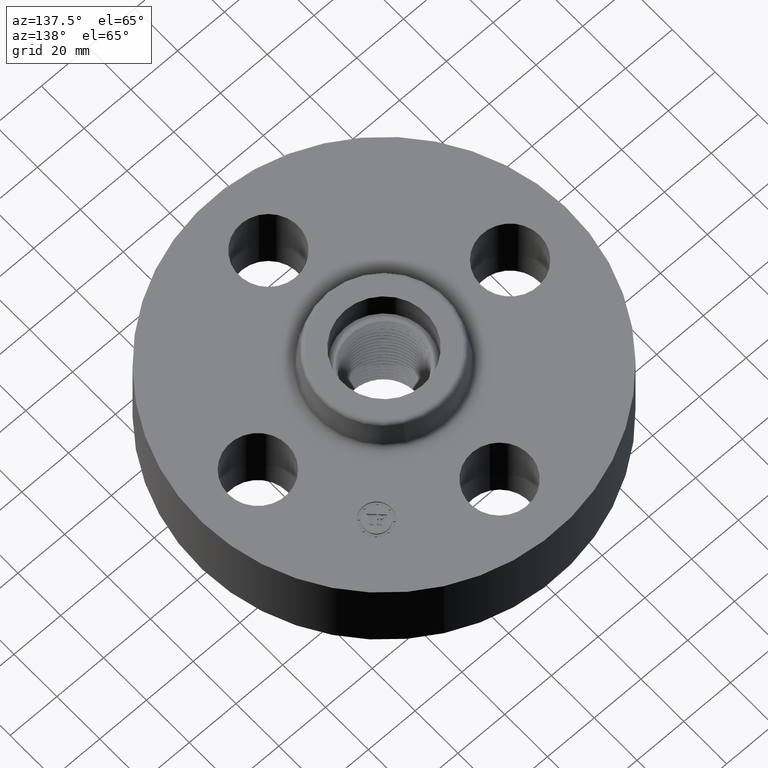
[diagram: clean part render]
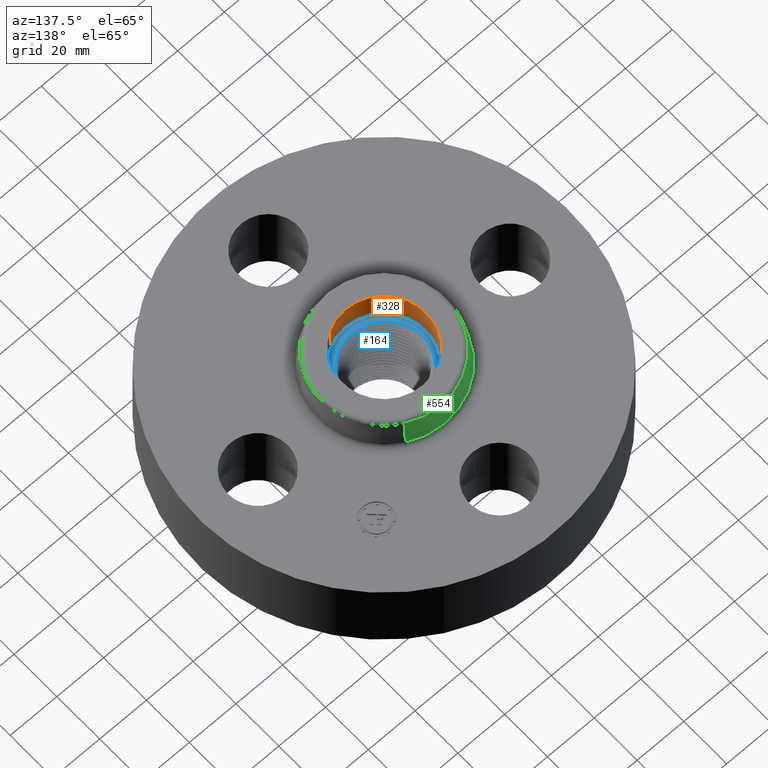
[diagram: same view with three faces highlighted in distinct colors, each labeled with its STEP entity id]
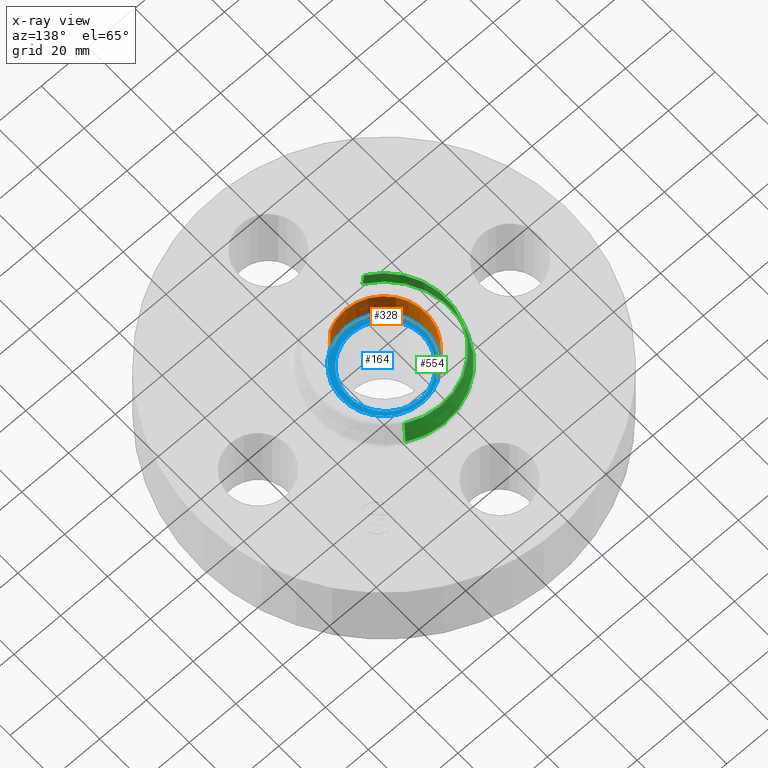
[diagram: x-ray of the same camera — body ghosted, the three highlighted faces saturated]
A machine part, auxiliary view with three faces highlighted in distinct colors.
The next image is the same camera in x-ray (body ghosted, the three faces saturated) — at least one of them is partly hidden behind the body in this view.
Their STEP definitions:

[orange] entity #328 — the highlighted cylindrical surface (partial cylindrical patch) has radius 17.907 mm, axis along (0, 0, 1).
#42=AXIS2_PLACEMENT_3D('Circle Axis2P3D',#40,#41,$) ;
#301=AXIS2_PLACEMENT_3D('Cylinder Axis2P3D',#298,#299,#300) ;
#305=AXIS2_PLACEMENT_3D('Circle Axis2P3D',#303,#304,$) ;
#40=CARTESIAN_POINT('Axis2P3D Location',(0.,0.,1.38000000001)) ;
#44=CARTESIAN_POINT('Vertex',(-0.337995004717,0.618695706135,1.38000000001)) ;
#46=CARTESIAN_POINT('Vertex',(0.337995004717,-0.618695706135,1.38000000001)) ;
#298=CARTESIAN_POINT('Axis2P3D Location',(0.,0.,1.38000000001)) ;
#303=CARTESIAN_POINT('Axis2P3D Location',(0.,0.,1.88000000001)) ;
#307=CARTESIAN_POINT('Vertex',(0.337995004717,-0.618695706135,1.88000000001)) ;
#309=CARTESIAN_POINT('Vertex',(-0.337995004717,0.618695706135,1.88000000001)) ;
#312=CARTESIAN_POINT('Line Origine',(0.337995004717,-0.618695706135,1.63000000001)) ;
#317=CARTESIAN_POINT('Line Origine',(-0.337995004717,0.618695706135,1.63000000001)) ;
#41=DIRECTION('Axis2P3D Direction',(0.,0.,-0.0393700787402)) ;
#299=DIRECTION('Axis2P3D Direction',(0.,0.,0.0393700787402)) ;
#300=DIRECTION('Axis2P3D XDirection',(0.0188750212049,-0.0345504945626,0.)) ;
#304=DIRECTION('Axis2P3D Direction',(0.,0.,0.0393700787402)) ;
#313=DIRECTION('Vector Direction',(0.,0.,0.0393700787402)) ;
#318=DIRECTION('Vector Direction',(0.,0.,0.0393700787402)) ;
#314=VECTOR('Line Direction',#313,0.0393700787402) ;
#319=VECTOR('Line Direction',#318,0.0393700787402) ;
#323=ORIENTED_EDGE('',*,*,#311,.F.) ;
#324=ORIENTED_EDGE('',*,*,#316,.F.) ;
#325=ORIENTED_EDGE('',*,*,#48,.F.) ;
#326=ORIENTED_EDGE('',*,*,#321,.T.) ;
#328=ADVANCED_FACE('PartBody',(#327),#302,.F.) ;
#43=CIRCLE('generated circle',#42,0.705000000003) ;
#306=CIRCLE('generated circle',#305,0.705000000003) ;
#302=CYLINDRICAL_SURFACE('generated cylinder',#301,0.705000000003) ;
#48=EDGE_CURVE('',#45,#47,#43,.F.) ;
#311=EDGE_CURVE('',#308,#310,#306,.F.) ;
#316=EDGE_CURVE('',#47,#308,#315,.T.) ;
#321=EDGE_CURVE('',#45,#310,#320,.T.) ;
#322=EDGE_LOOP('',(#323,#324,#325,#326)) ;
#327=FACE_OUTER_BOUND('',#322,.T.) ;
#315=LINE('Line',#312,#314) ;
#320=LINE('Line',#317,#319) ;
#45=VERTEX_POINT('',#44) ;
#47=VERTEX_POINT('',#46) ;
#308=VERTEX_POINT('',#307) ;
#310=VERTEX_POINT('',#309) ;

[blue] entity #164 — the highlighted planar face has unit normal (0, 0, -1).
#38=AXIS2_PLACEMENT_3D('Plane Axis2P3D',#35,#36,#37) ;
#42=AXIS2_PLACEMENT_3D('Circle Axis2P3D',#40,#41,$) ;
#51=AXIS2_PLACEMENT_3D('Circle Axis2P3D',#49,#50,$) ;
#60=AXIS2_PLACEMENT_3D('Circle Axis2P3D',#58,#59,$) ;
#35=CARTESIAN_POINT('Axis2P3D Location',(-9.35384753031E-017,1.08399728389E-016,1.38000000001)) ;
#40=CARTESIAN_POINT('Axis2P3D Location',(0.,0.,1.38000000001)) ;
#44=CARTESIAN_POINT('Vertex',(-0.337995004717,0.618695706135,1.38000000001)) ;
#46=CARTESIAN_POINT('Vertex',(0.337995004717,-0.618695706135,1.38000000001)) ;
#49=CARTESIAN_POINT('Axis2P3D Location',(0.,0.,1.38000000001)) ;
#58=CARTESIAN_POINT('Axis2P3D Location',(1.1626745061E-016,-1.18890024684E-016,1.38000000001)) ;
#62=CARTESIAN_POINT('Vertex',(-0.00949929442543,-0.585706503744,1.37999941783)) ;
#64=CARTESIAN_POINT('Vertex',(-0.0793239107826,-0.580387888288,1.38000047135)) ;
#68=CARTESIAN_POINT('Control Point',(-0.309049877259,0.565716223418,1.38000000001)) ;
#69=CARTESIAN_POINT('Control Point',(-0.362777895111,0.533771564816,1.38000000001)) ;
#70=CARTESIAN_POINT('Control Point',(-0.412515231994,0.495379413593,1.38000000001)) ;
#71=CARTESIAN_POINT('Control Point',(-0.457206731892,0.451190931693,1.38000000001)) ;
#72=CARTESIAN_POINT('Control Point',(-0.534746567426,0.353031704337,1.38000000001)) ;
#73=CARTESIAN_POINT('Control Point',(-0.586093063436,0.239601820345,1.38000000001)) ;
#74=CARTESIAN_POINT('Control Point',(-0.604602581289,0.180115720679,1.38000000001)) ;
#75=CARTESIAN_POINT('Control Point',(-0.622895640423,0.0784362875033,1.38000000001)) ;
#76=CARTESIAN_POINT('Control Point',(-0.620137180821,-0.0240329128314,1.38000000001)) ;
#77=CARTESIAN_POINT('Control Point',(-0.61565166873,-0.0647733012074,1.38000000001)) ;
#78=CARTESIAN_POINT('Control Point',(-0.596098257652,-0.165083797034,1.38000000001)) ;
#79=CARTESIAN_POINT('Control Point',(-0.556380002652,-0.259276887118,1.38000000001)) ;
#80=CARTESIAN_POINT('Control Point',(-0.52565751677,-0.312373724251,1.38000000001)) ;
#81=CARTESIAN_POINT('Control Point',(-0.451775582756,-0.409537065272,1.38000000001)) ;
#82=CARTESIAN_POINT('Control Point',(-0.356680839336,-0.485039805956,1.38000000001)) ;
#83=CARTESIAN_POINT('Control Point',(-0.304708223826,-0.516507726068,1.38000000001)) ;
#84=CARTESIAN_POINT('Control Point',(-0.228145357689,-0.550475885286,1.38000000001)) ;
#85=CARTESIAN_POINT('Control Point',(-0.147669979726,-0.570416939975,1.38000000001)) ;
#86=CARTESIAN_POINT('Control Point',(-0.12502256953,-0.574863116995,1.38000000001)) ;
#87=CARTESIAN_POINT('Control Point',(-0.102215768127,-0.578188372291,1.38000000001)) ;
#88=CARTESIAN_POINT('Control Point',(-0.0793237960029,-0.580387172535,1.38000000001)) ;
#89=CARTESIAN_POINT('Vertex',(-0.309049877259,0.565716223418,1.38000000001)) ;
#93=CARTESIAN_POINT('Control Point',(-0.0516217877433,0.652478044382,1.38000000001)) ;
#94=CARTESIAN_POINT('Control Point',(-0.106194450354,0.646184056569,1.38000000001)) ;
#95=CARTESIAN_POINT('Control Point',(-0.160009001938,0.634171510794,1.38000000001)) ;
#96=CARTESIAN_POINT('Control Point',(-0.212272922768,0.616543946216,1.38000000001)) ;
#97=CARTESIAN_POINT('Control Point',(-0.262179892326,0.593583353333,1.38000000001)) ;
#98=CARTESIAN_POINT('Control Point',(-0.309049877259,0.565716223418,1.38000000001)) ;
#99=CARTESIAN_POINT('Vertex',(-0.0516217877433,0.652478044382,1.38000000001)) ;
#103=CARTESIAN_POINT('Control Point',(-0.0516217877433,0.652478044382,1.38000000001)) ;
#104=CARTESIAN_POINT('Control Point',(-0.0413004545836,0.65295860538,1.38000000001)) ;
#105=CARTESIAN_POINT('Control Point',(-0.0309727511457,0.653235218394,1.38000000001)) ;
#106=CARTESIAN_POINT('Control Point',(-0.0206369709344,0.653307693991,1.38000000001)) ;
#107=CARTESIAN_POINT('Control Point',(-0.0103126300768,0.653175970798,1.38000000001)) ;
#108=CARTESIAN_POINT('Control Point',(2.00063868126E-006,0.652840425221,1.38000000001)) ;
#109=CARTESIAN_POINT('Vertex',(2.00063868128E-006,0.652840425221,1.38000000001)) ;
#113=CARTESIAN_POINT('Control Point',(2.00063868131E-006,0.652840425221,1.38000000001)) ;
#114=CARTESIAN_POINT('Control Point',(0.0628711812175,0.650795225366,1.38000000001)) ;
#115=CARTESIAN_POINT('Control Point',(0.12537962373,0.641177787819,1.38000000001)) ;
#116=CARTESIAN_POINT('Control Point',(0.18629782067,0.624043039541,1.38000000001)) ;
#117=CARTESIAN_POINT('Control Point',(0.302533911355,0.575468733699,1.38000000001)) ;
#118=CARTESIAN_POINT('Control Point',(0.403364498492,0.500774173251,1.38000000001)) ;
#119=CARTESIAN_POINT('Control Point',(0.448878897446,0.457513178717,1.38000000001)) ;
#120=CARTESIAN_POINT('Control Point',(0.515027565788,0.377053419271,1.38000000001)) ;
#121=CARTESIAN_POINT('Control Point',(0.563227772536,0.285550785952,1.38000000001)) ;
#122=CARTESIAN_POINT('Control Point',(0.57943839606,0.247507272332,1.38000000001)) ;
#123=CARTESIAN_POINT('Control Point',(0.611941364737,0.149647859459,1.38000000001)) ;
#124=CARTESIAN_POINT('Control Point',(0.623891988565,0.0471352797657,1.38000000001)) ;
#125=CARTESIAN_POINT('Control Point',(0.623382625953,-0.0148105244384,1.38000000001)) ;
#126=CARTESIAN_POINT('Control Point',(0.607085029788,-0.1370160957,1.38000000001)) ;
#127=CARTESIAN_POINT('Control Point',(0.561591649389,-0.251022350932,1.38000000001)) ;
#128=CARTESIAN_POINT('Control Point',(0.531877912767,-0.304783092398,1.38000000001)) ;
#129=CARTESIAN_POINT('Control Point',(0.470656058747,-0.388681392368,1.38000000001)) ;
#130=CARTESIAN_POINT('Control Point',(0.393727725386,-0.457316234956,1.38000000001)) ;
#131=CARTESIAN_POINT('Control Point',(0.359716602045,-0.482661367324,1.38000000001)) ;
#132=CARTESIAN_POINT('Control Point',(0.323705007385,-0.504851169306,1.38000000001)) ;
#133=CARTESIAN_POINT('Control Point',(0.286091728501,-0.523694317702,1.38000000001)) ;
#134=CARTESIAN_POINT('Vertex',(0.286091728501,-0.523694317702,1.38000000001)) ;
#138=CARTESIAN_POINT('Control Point',(0.286091728501,-0.523694317702,1.38000000001)) ;
#139=CARTESIAN_POINT('Control Point',(0.232940795276,-0.550321375013,1.38000000001)) ;
#140=CARTESIAN_POINT('Control Point',(0.176591573324,-0.570265745912,1.38000000001)) ;
#141=CARTESIAN_POINT('Control Point',(0.118132035886,-0.582998630517,1.38000000001)) ;
#142=CARTESIAN_POINT('Control Point',(0.0588608051139,-0.58825996807,1.38000000001)) ;
#143=CARTESIAN_POINT('Control Point',(-3.89247784777E-006,-0.586126893668,1.38000000001)) ;
#144=CARTESIAN_POINT('Vertex',(-3.89247784785E-006,-0.586126893668,1.38000000001)) ;
#148=CARTESIAN_POINT('Control Point',(-3.89247784774E-006,-0.586126893668,1.38000000001)) ;
#149=CARTESIAN_POINT('Control Point',(-0.00190389432327,-0.586058043485,1.38000000001)) ;
#150=CARTESIAN_POINT('Control Point',(-0.0038034726791,-0.585981489576,1.38000000001)) ;
#151=CARTESIAN_POINT('Control Point',(-0.00570263455717,-0.585897232092,1.38000000001)) ;
#152=CARTESIAN_POINT('Control Point',(-0.00760123904533,-0.585805278187,1.38000000001)) ;
#153=CARTESIAN_POINT('Control Point',(-0.0094992932573,-0.585705628864,1.38000000001)) ;
#36=DIRECTION('Axis2P3D Direction',(0.,0.,-0.0393700787402)) ;
#37=DIRECTION('Axis2P3D XDirection',(0.,0.0393700787402,0.)) ;
#41=DIRECTION('Axis2P3D Direction',(0.,0.,-0.0393700787402)) ;
#50=DIRECTION('Axis2P3D Direction',(0.,0.,-0.0393700787402)) ;
#59=DIRECTION('Axis2P3D Direction',(0.,0.,-0.0393700787402)) ;
#55=ORIENTED_EDGE('',*,*,#48,.T.) ;
#56=ORIENTED_EDGE('',*,*,#53,.T.) ;
#156=ORIENTED_EDGE('',*,*,#66,.T.) ;
#157=ORIENTED_EDGE('',*,*,#91,.F.) ;
#158=ORIENTED_EDGE('',*,*,#101,.F.) ;
#159=ORIENTED_EDGE('',*,*,#111,.T.) ;
#160=ORIENTED_EDGE('',*,*,#136,.T.) ;
#161=ORIENTED_EDGE('',*,*,#146,.T.) ;
#162=ORIENTED_EDGE('',*,*,#154,.T.) ;
#163=FACE_BOUND('',#155,.T.) ;
#164=ADVANCED_FACE('PartBody',(#57,#163),#39,.F.) ;
#67=B_SPLINE_CURVE_WITH_KNOTS('',5,(#68,#69,#70,#71,#72,#73,#74,#75,#76,#77,#78,#79,#80,#81,#82,#83,#84,#85,#86,#87,#88),.UNSPECIFIED.,.F.,.U.,(6,3,3,3,3,3,6),(0.,11.0233151277,22.051693298,29.4025229237,40.4294352813,51.4657569,55.7264235262),.UNSPECIFIED.) ;
#92=B_SPLINE_CURVE_WITH_KNOTS('',5,(#93,#94,#95,#96,#97,#98),.UNSPECIFIED.,.F.,.U.,(6,6),(0.,9.61626044167),.UNSPECIFIED.) ;
#102=B_SPLINE_CURVE_WITH_KNOTS('',5,(#103,#104,#105,#106,#107,#108),.UNSPECIFIED.,.F.,.U.,(6,6),(0.,1.80865135417),.UNSPECIFIED.) ;
#112=B_SPLINE_CURVE_WITH_KNOTS('',5,(#113,#114,#115,#116,#117,#118,#119,#120,#121,#122,#123,#124,#125,#126,#127,#128,#129,#130,#131,#132,#133),.UNSPECIFIED.,.F.,.U.,(6,3,3,3,3,3,6),(0.,11.0239941473,22.0484194483,29.3938536626,40.4078646075,51.4249810271,59.1269665537),.UNSPECIFIED.) ;
#137=B_SPLINE_CURVE_WITH_KNOTS('',5,(#138,#139,#140,#141,#142,#143),.UNSPECIFIED.,.F.,.U.,(6,6),(0.,10.883595674),.UNSPECIFIED.) ;
#147=B_SPLINE_CURVE_WITH_KNOTS('',5,(#148,#149,#150,#151,#152,#153),.UNSPECIFIED.,.F.,.U.,(6,6),(0.,0.351294624974),.UNSPECIFIED.) ;
#43=CIRCLE('generated circle',#42,0.705000000003) ;
#52=CIRCLE('generated circle',#51,0.705000000003) ;
#61=CIRCLE('generated circle',#60,0.585783549135) ;
#48=EDGE_CURVE('',#45,#47,#43,.F.) ;
#53=EDGE_CURVE('',#47,#45,#52,.F.) ;
#66=EDGE_CURVE('',#63,#65,#61,.T.) ;
#91=EDGE_CURVE('',#90,#65,#67,.T.) ;
#101=EDGE_CURVE('',#100,#90,#92,.T.) ;
#111=EDGE_CURVE('',#100,#110,#102,.T.) ;
#136=EDGE_CURVE('',#110,#135,#112,.T.) ;
#146=EDGE_CURVE('',#135,#145,#137,.T.) ;
#154=EDGE_CURVE('',#145,#63,#147,.T.) ;
#54=EDGE_LOOP('',(#55,#56)) ;
#155=EDGE_LOOP('',(#156,#157,#158,#159,#160,#161,#162)) ;
#57=FACE_OUTER_BOUND('',#54,.T.) ;
#39=PLANE('',#38) ;
#45=VERTEX_POINT('',#44) ;
#47=VERTEX_POINT('',#46) ;
#63=VERTEX_POINT('',#62) ;
#65=VERTEX_POINT('',#64) ;
#90=VERTEX_POINT('',#89) ;
#100=VERTEX_POINT('',#99) ;
#110=VERTEX_POINT('',#109) ;
#135=VERTEX_POINT('',#134) ;
#145=VERTEX_POINT('',#144) ;

[green] entity #554 — the highlighted conical surface has half-angle 10 deg.
#502=AXIS2_PLACEMENT_3D('Circle Axis2P3D',#500,#501,$) ;
#515=AXIS2_PLACEMENT_3D('Cone Axis2P3D',#512,#513,#514) ;
#545=AXIS2_PLACEMENT_3D('Circle Axis2P3D',#543,#544,$) ;
#473=CARTESIAN_POINT('Vertex',(0.535162359244,0.97960812772,1.42958110935)) ;
#480=CARTESIAN_POINT('Vertex',(-0.535162359244,-0.97960812772,1.42958110935)) ;
#500=CARTESIAN_POINT('Axis2P3D Location',(0.,0.,1.42958110935)) ;
#512=CARTESIAN_POINT('Axis2P3D Location',(0.,0.,1.83041889067)) ;
#517=CARTESIAN_POINT('Line Origine',(0.518219816508,0.948595011265,1.63000000001)) ;
#521=CARTESIAN_POINT('Vertex',(0.501277273771,0.917581894811,1.83041889067)) ;
#528=CARTESIAN_POINT('Vertex',(-0.501277273771,-0.917581894811,1.83041889067)) ;
#531=CARTESIAN_POINT('Line Origine',(-0.518219816508,-0.948595011265,1.63000000001)) ;
#543=CARTESIAN_POINT('Axis2P3D Location',(0.,0.,1.83041889067)) ;
#501=DIRECTION('Axis2P3D Direction',(0.,0.,-0.0393700787402)) ;
#513=DIRECTION('Axis2P3D Direction',(0.,0.,-0.0393700787402)) ;
#514=DIRECTION('Axis2P3D XDirection',(-0.0188750212049,-0.0345504945626,0.)) ;
#518=DIRECTION('Vector Direction',(0.00327761303565,0.00599963041829,-0.03877195878)) ;
#532=DIRECTION('Vector Direction',(-0.00327761303565,-0.00599963041829,-0.03877195878)) ;
#544=DIRECTION('Axis2P3D Direction',(0.,0.,-0.0393700787402)) ;
#519=VECTOR('Line Direction',#518,0.0393700787402) ;
#533=VECTOR('Line Direction',#532,0.0393700787402) ;
#549=ORIENTED_EDGE('',*,*,#504,.F.) ;
#550=ORIENTED_EDGE('',*,*,#535,.T.) ;
#551=ORIENTED_EDGE('',*,*,#547,.T.) ;
#552=ORIENTED_EDGE('',*,*,#523,.F.) ;
#554=ADVANCED_FACE('PartBody',(#553),#516,.T.) ;
#503=CIRCLE('generated circle',#502,1.11625751269) ;
#546=CIRCLE('generated circle',#545,1.04557899696) ;
#516=CONICAL_SURFACE('Cone',#515,1.04557899696,0.174532925199) ;
#504=EDGE_CURVE('',#481,#474,#503,.T.) ;
#523=EDGE_CURVE('',#474,#522,#520,.F.) ;
#535=EDGE_CURVE('',#481,#529,#534,.F.) ;
#547=EDGE_CURVE('',#529,#522,#546,.T.) ;
#548=EDGE_LOOP('',(#549,#550,#551,#552)) ;
#553=FACE_OUTER_BOUND('',#548,.T.) ;
#520=LINE('Line',#517,#519) ;
#534=LINE('Line',#531,#533) ;
#474=VERTEX_POINT('',#473) ;
#481=VERTEX_POINT('',#480) ;
#522=VERTEX_POINT('',#521) ;
#529=VERTEX_POINT('',#528) ;